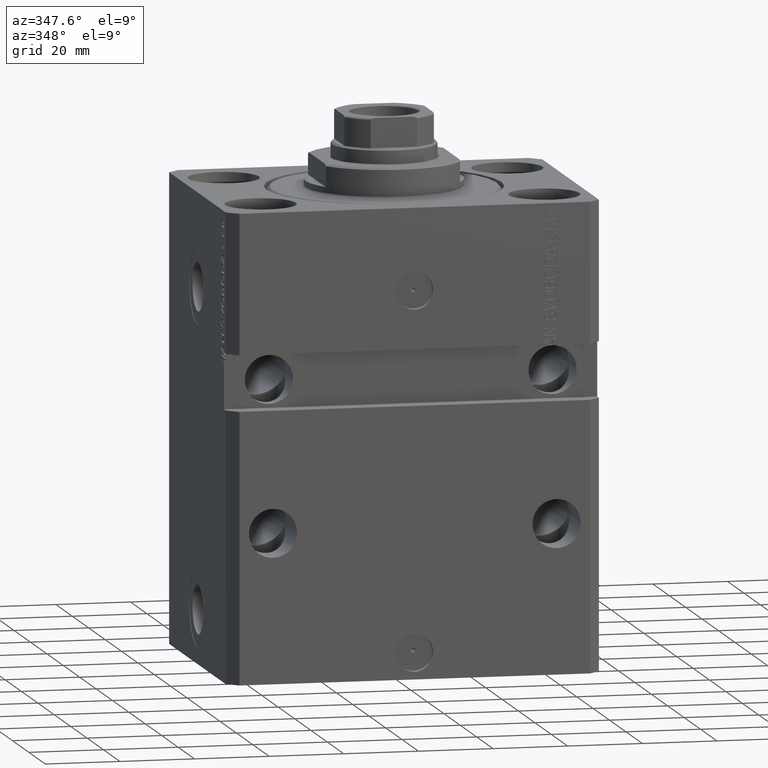
[diagram: clean part render]
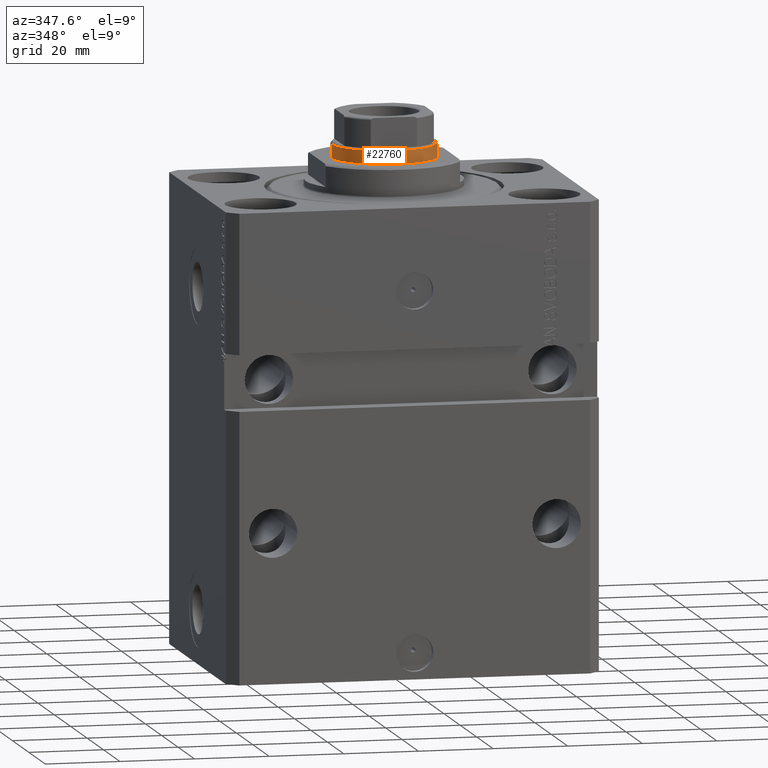
[diagram: same view with one face highlighted and labeled with its STEP entity id]
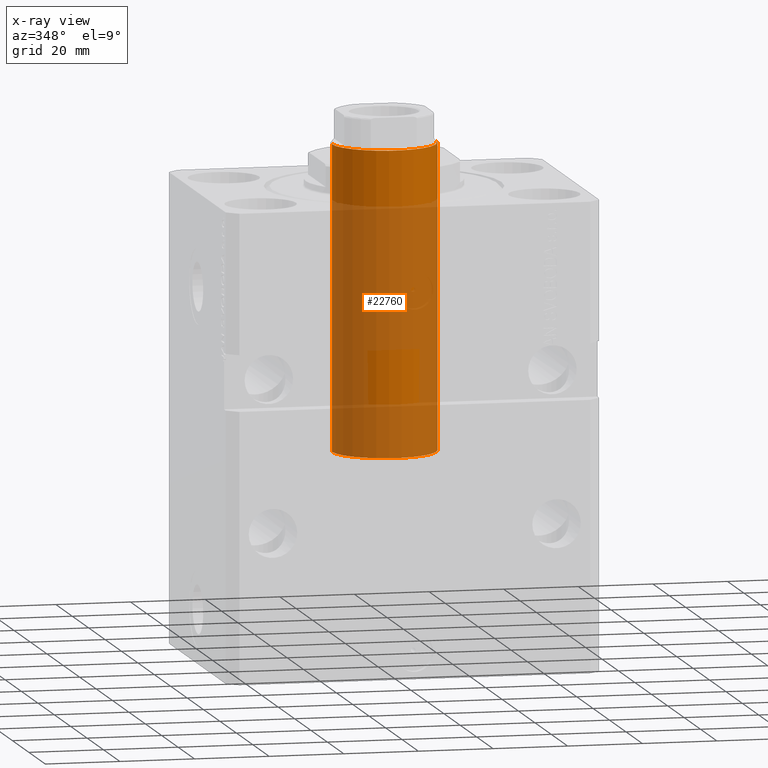
[diagram: x-ray of the same camera — body ghosted, the highlighted face saturated]
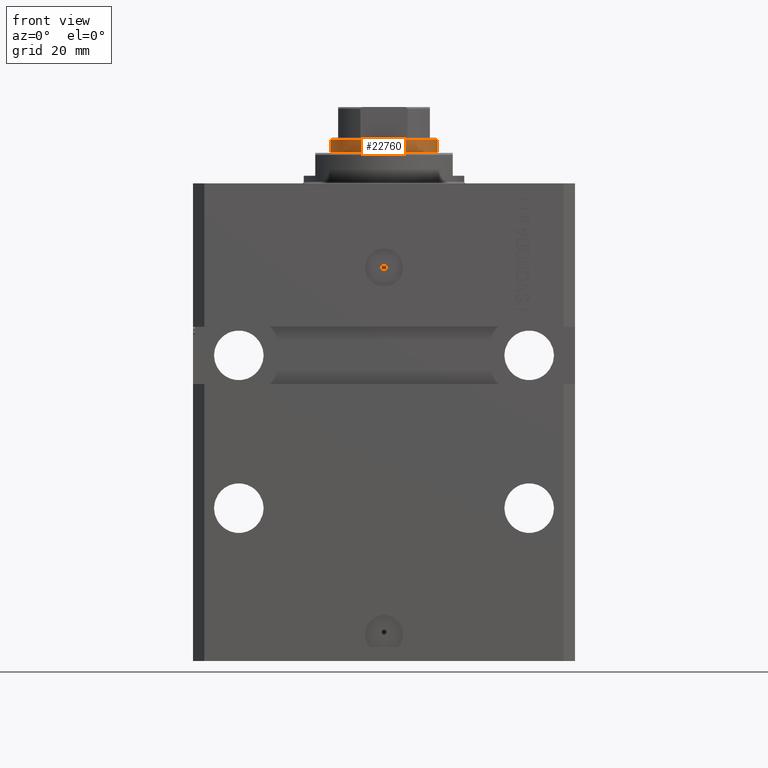
[diagram: same view with one face highlighted and labeled with its STEP entity id]
A machine part, auxiliary view. The second image highlights one B-rep face of the part: STEP entity #22760.
The next image is the same camera in x-ray: the body ghosted, the highlighted face saturated — about 73% of this face is hidden behind the body in this view.
A second angle (front view) of the same face is appended — the face is thin or edge-on in the first view.
In plain terms, the highlighted cylindrical surface (partial cylindrical patch) has radius 14 mm, axis along (-0, -0, -1).
Its self-contained STEP definition (entity closure, byte-faithful):
#1312 = VERTEX_POINT ( 'NONE', #12370 ) ;
#2267 = CARTESIAN_POINT ( 'NONE',  ( -14.00000000000000000, 0.000000000000000000, 43.10000000000000142 ) ) ;
#2912 = EDGE_CURVE ( 'NONE', #1312, #24803, #29612, .T. ) ;
#7048 = DIRECTION ( 'NONE',  ( 1.000000000000000000, 0.000000000000000000, 0.000000000000000000 ) ) ;
#7402 = ORIENTED_EDGE ( 'NONE', *, *, #2912, .F. ) ;
#7426 = CYLINDRICAL_SURFACE ( 'NONE', #25537, 14.00000000000000000 ) ;
#8316 = LINE ( 'NONE', #37027, #36421 ) ;
#8785 = ORIENTED_EDGE ( 'NONE', *, *, #15222, .T. ) ;
#10035 = CARTESIAN_POINT ( 'NONE',  ( 0.000000000000000000, 0.000000000000000000, 43.10000000000000142 ) ) ;
#10493 = CARTESIAN_POINT ( 'NONE',  ( 0.000000000000000000, 0.000000000000000000, 124.6000000000000085 ) ) ;
#10508 = VECTOR ( 'NONE', #23381, 1000.000000000000000 ) ;
#10894 = CIRCLE ( 'NONE', #13839, 14.00000000000000000 ) ;
#11348 = CIRCLE ( 'NONE', #35574, 14.00000000000000000 ) ;
#12117 = VERTEX_POINT ( 'NONE', #43712 ) ;
#12195 = DIRECTION ( 'NONE',  ( -0.000000000000000000, -0.000000000000000000, -1.000000000000000000 ) ) ;
#12370 = CARTESIAN_POINT ( 'NONE',  ( 14.00000000000000000, 1.714505518806294638E-15, 124.6000000000000085 ) ) ;
#13255 = VERTEX_POINT ( 'NONE', #2267 ) ;
#13839 = AXIS2_PLACEMENT_3D ( 'NONE', #10035, #20367, #7048 ) ;
#15222 = EDGE_CURVE ( 'NONE', #12117, #13255, #8316, .T. ) ;
#18200 = FACE_OUTER_BOUND ( 'NONE', #44752, .T. ) ;
#20367 = DIRECTION ( 'NONE',  ( 0.000000000000000000, 0.000000000000000000, 1.000000000000000000 ) ) ;
#21050 = DIRECTION ( 'NONE',  ( 1.000000000000000000, 0.000000000000000000, 0.000000000000000000 ) ) ;
#22760 = ADVANCED_FACE ( 'NONE', ( #18200 ), #7426, .T. ) ;
#23381 = DIRECTION ( 'NONE',  ( -0.000000000000000000, -0.000000000000000000, -1.000000000000000000 ) ) ;
#24501 = DIRECTION ( 'NONE',  ( 0.000000000000000000, 0.000000000000000000, -1.000000000000000000 ) ) ;
#24803 = VERTEX_POINT ( 'NONE', #39048 ) ;
#25060 = EDGE_CURVE ( 'NONE', #13255, #24803, #10894, .T. ) ;
#25537 = AXIS2_PLACEMENT_3D ( 'NONE', #26403, #36519, #28591 ) ;
#26403 = CARTESIAN_POINT ( 'NONE',  ( 0.000000000000000000, 0.000000000000000000, 125.0999999999999943 ) ) ;
#28273 = ORIENTED_EDGE ( 'NONE', *, *, #25060, .T. ) ;
#28591 = DIRECTION ( 'NONE',  ( -1.000000000000000000, 0.000000000000000000, 0.000000000000000000 ) ) ;
#29265 = EDGE_CURVE ( 'NONE', #1312, #12117, #11348, .T. ) ;
#29612 = LINE ( 'NONE', #33066, #10508 ) ;
#33066 = CARTESIAN_POINT ( 'NONE',  ( 14.00000000000000000, 1.714505518806294638E-15, 125.0999999999999943 ) ) ;
#35574 = AXIS2_PLACEMENT_3D ( 'NONE', #10493, #24501, #21050 ) ;
#36421 = VECTOR ( 'NONE', #12195, 1000.000000000000000 ) ;
#36519 = DIRECTION ( 'NONE',  ( -0.000000000000000000, -0.000000000000000000, -1.000000000000000000 ) ) ;
#37027 = CARTESIAN_POINT ( 'NONE',  ( -14.00000000000000000, 0.000000000000000000, 125.0999999999999943 ) ) ;
#39048 = CARTESIAN_POINT ( 'NONE',  ( 14.00000000000000000, 1.714505518806294638E-15, 43.10000000000000142 ) ) ;
#41870 = ORIENTED_EDGE ( 'NONE', *, *, #29265, .T. ) ;
#43712 = CARTESIAN_POINT ( 'NONE',  ( -14.00000000000000000, 0.000000000000000000, 124.6000000000000085 ) ) ;
#44752 = EDGE_LOOP ( 'NONE', ( #7402, #41870, #8785, #28273 ) ) ;